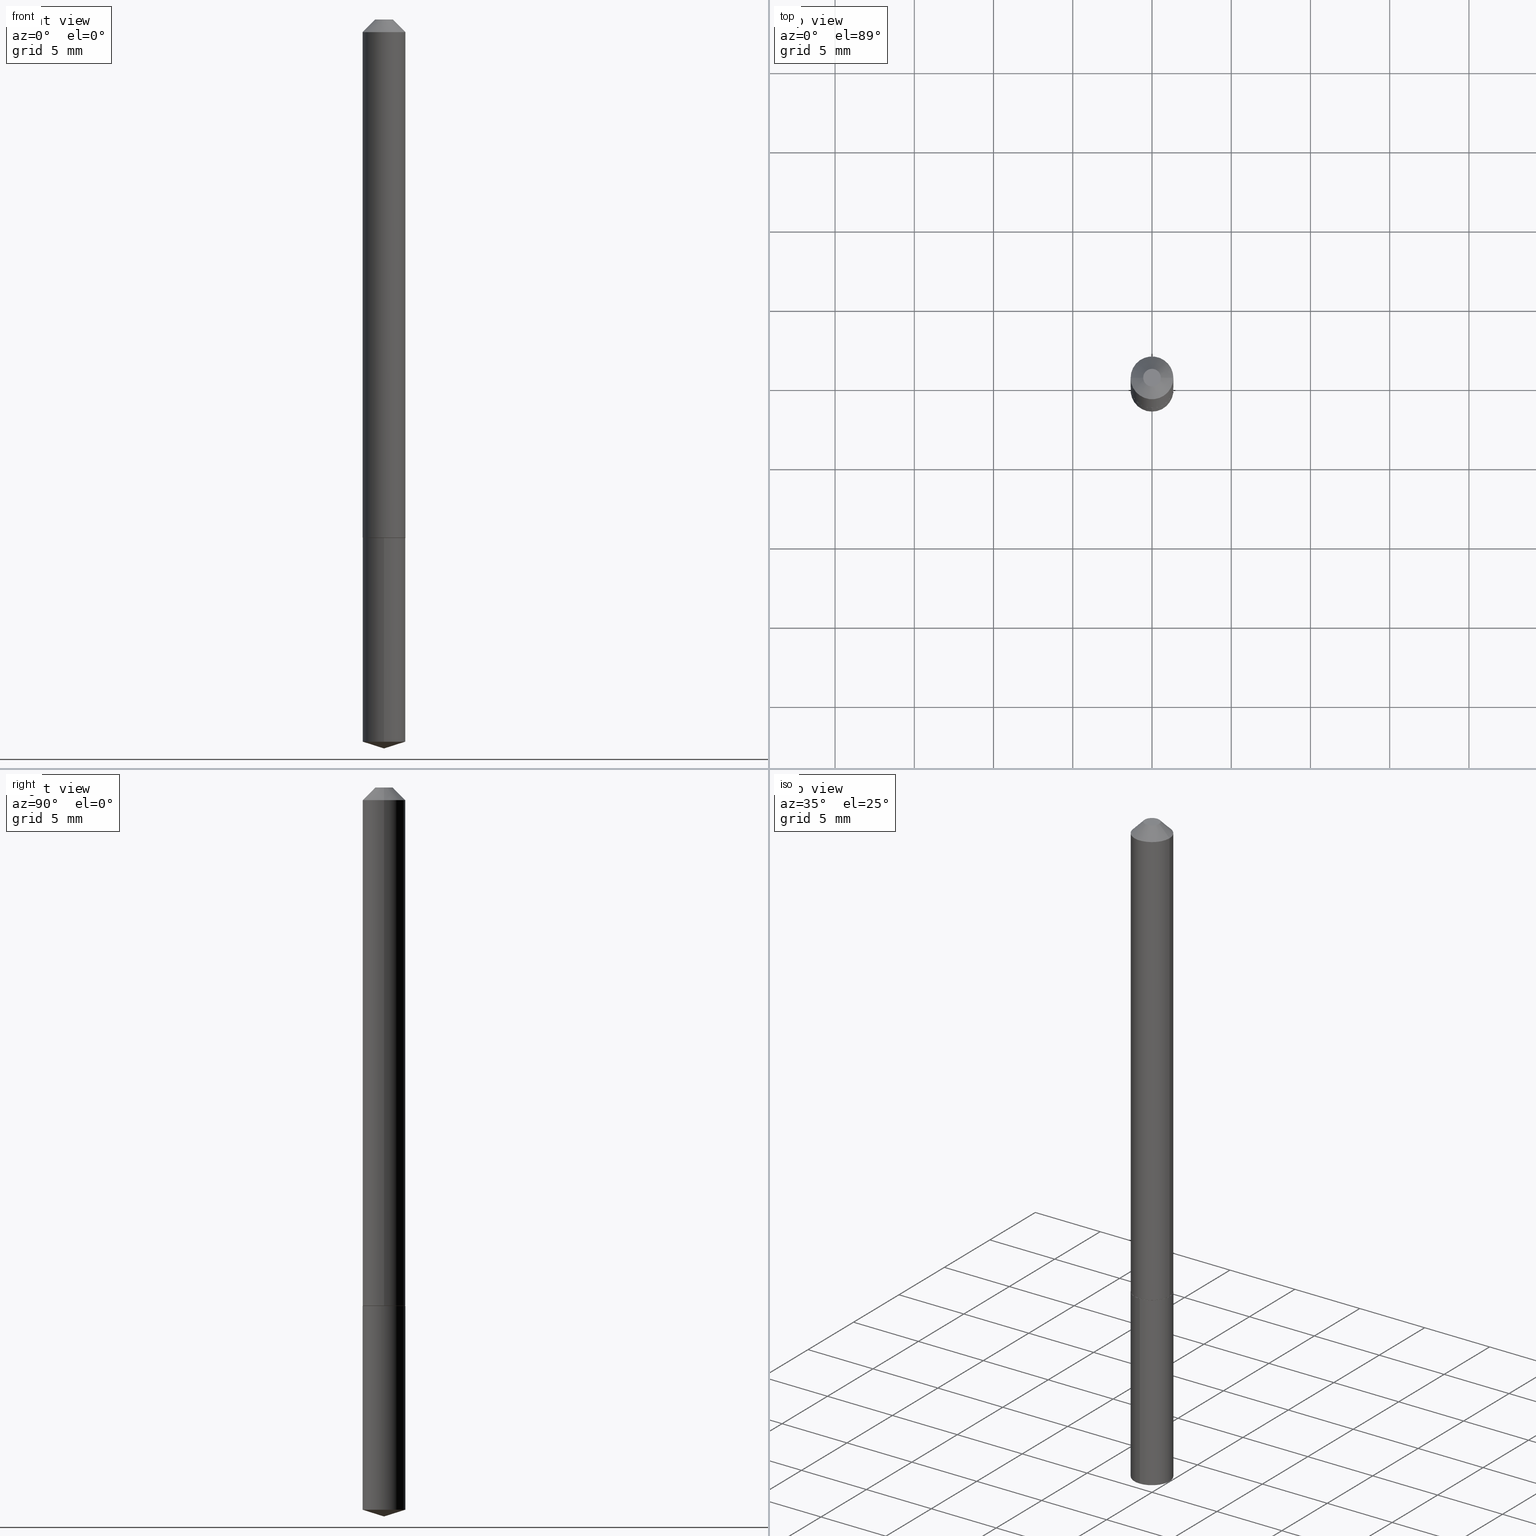
[diagram: canonical four-view strip — front | top / right | iso, engineering-drawing reading convention]
A machine part, canonical four-view strip (front | top / right | iso — engineering-drawing reading convention). The complete STEP part file that produces these views, byte-faithful:
ISO-10303-21;
HEADER;
FILE_DESCRIPTION (( 'STEP AP203' ),
    '1' );
FILE_NAME ('62065.STEP',
    '2024-04-23T05:24:26',
    ( '' ),
    ( '' ),
    'SwSTEP 2.0',
    'SolidWorks 2023',
    '' );
FILE_SCHEMA (( 'CONFIG_CONTROL_DESIGN' ));
ENDSEC;

DATA;
#1 = DIRECTION ( 'NONE',  ( -0.7071067811865452413, 2.468850131082233000E-15, -0.7071067811865497932 ) ) ;
#2 = DIRECTION ( 'NONE',  ( 1.000000000000000000, -6.982962677686274599E-15, 0.000000000000000000 ) ) ;
#3 = AXIS2_PLACEMENT_3D ( 'NONE', #364, #81, #198 ) ;
#4 = CARTESIAN_POINT ( 'NONE',  ( -0.05315000000000000280, 2.620356744801761166E-16, -0.03125000000000020123 ) ) ;
#5 = LOCAL_TIME ( 1, 24, 26.00000000000000000, #206 ) ;
#6 = DIRECTION ( 'NONE',  ( -1.000000000000000000, 6.982962677686265922E-15, -4.876176775795935793E-29 ) ) ;
#7 = DIRECTION ( 'NONE',  ( -2.445499432379948463E-29, 3.491437480389040413E-15, 1.000000000000000000 ) ) ;
#8 = EDGE_CURVE ( 'NONE', #233, #242, #215, .T. ) ;
#9 = EDGE_LOOP ( 'NONE', ( #209, #125 ) ) ;
#10 = APPROVAL_DATE_TIME ( #49, #148 ) ;
#11 = AXIS2_PLACEMENT_3D ( 'NONE', #47, #301, #138 ) ;
#12 = EDGE_CURVE ( 'NONE', #233, #139, #146, .T. ) ;
#13 = ORIENTED_EDGE ( 'NONE', *, *, #12, .T. ) ;
#14 = APPROVAL_ROLE ( '' ) ;
#15 = AXIS2_PLACEMENT_3D ( 'NONE', #340, #312, #341 ) ;
#16 = DIRECTION ( 'NONE',  ( -2.445499432379948463E-29, 3.491437480389040413E-15, 1.000000000000000000 ) ) ;
#17 = PERSON_AND_ORGANIZATION ( #208, #124 ) ;
#18 = DIRECTION ( 'NONE',  ( -2.445468806185136597E-29, 3.491481338843145583E-15, 1.000000000000000000 ) ) ;
#19 = ORIENTED_EDGE ( 'NONE', *, *, #110, .F. ) ;
#20 = DATE_AND_TIME ( #310, #5 ) ;
#21 = LINE ( 'NONE', #347, #52 ) ;
#22 = ORIENTED_EDGE ( 'NONE', *, *, #25, .T. ) ;
#23 = VECTOR ( 'NONE', #1, 39.37007874015748143 ) ;
#24 = CARTESIAN_POINT ( 'NONE',  ( 0.05315000000000016933, -4.864331801276270815E-15, -1.286899999999999933 ) ) ;
#25 = EDGE_CURVE ( 'NONE', #186, #274, #316, .T. ) ;
#26 = FACE_OUTER_BOUND ( 'NONE', #300, .T. ) ;
#27 = ORIENTED_EDGE ( 'NONE', *, *, #385, .T. ) ;
#28 = DIRECTION ( 'NONE',  ( -6.659769872151619467E-15, -0.9537169507482249342, 0.3007057995042790588 ) ) ;
#29 = PERSON_AND_ORGANIZATION_ROLE ( 'creator' ) ;
#30 = CARTESIAN_POINT ( 'NONE',  ( 7.642090019328600035E-31, -1.091087918388489897E-16, -0.03125000000000020123 ) ) ;
#31 = FACE_OUTER_BOUND ( 'NONE', #358, .T. ) ;
#32 = DIRECTION ( 'NONE',  ( -2.445468806185136597E-29, 3.491481338843145583E-15, 1.000000000000000000 ) ) ;
#33 = PERSON_AND_ORGANIZATION ( #208, #124 ) ;
#34 = LINE ( 'NONE', #133, #167 ) ;
#35 = AXIS2_PLACEMENT_3D ( 'NONE', #315, #382, #188 ) ;
#36 = EDGE_CURVE ( 'NONE', #242, #350, #21, .T. ) ;
#37 = ORIENTED_EDGE ( 'NONE', *, *, #385, .F. ) ;
#38 = CYLINDRICAL_SURFACE ( 'NONE', #100, 0.05315000000000008606 ) ;
#39 = CARTESIAN_POINT ( 'NONE',  ( -0.05315000000000016933, -4.115533870900749124E-15, -1.286899999999999933 ) ) ;
#40 = CARTESIAN_POINT ( 'NONE',  ( 7.642090019328600035E-31, -1.091087918388489897E-16, -0.03125000000000020123 ) ) ;
#41 = CC_DESIGN_DATE_AND_TIME_ASSIGNMENT ( #82, #118, ( #131 ) ) ;
#42 = EDGE_CURVE ( 'NONE', #156, #197, #34, .T. ) ;
#43 = AXIS2_PLACEMENT_3D ( 'NONE', #222, #294, #6 ) ;
#44 = VERTEX_POINT ( 'NONE', #75 ) ;
#45 = DIRECTION ( 'NONE',  ( -2.445499432379948463E-29, 3.491437480389040413E-15, 1.000000000000000000 ) ) ;
#46 = APPLICATION_CONTEXT ( 'configuration controlled 3d designs of mechanical parts and assemblies' ) ;
#47 = CARTESIAN_POINT ( 'NONE',  ( -5.839929314523175409E-48, 8.337871319499082469E-34, 2.388061258337334140E-19 ) ) ;
#48 = PERSON_AND_ORGANIZATION ( #208, #124 ) ;
#49 = DATE_AND_TIME ( #331, #163 ) ;
#50 = ORIENTED_EDGE ( 'NONE', *, *, #132, .F. ) ;
#51 = APPLICATION_PROTOCOL_DEFINITION ( 'international standard', 'config_control_design', 1994, #389 ) ;
#52 = VECTOR ( 'NONE', #313, 39.37007874015748143 ) ;
#53 = APPROVAL_PERSON_ORGANIZATION ( #17, #362, #14 ) ;
#54 = COORDINATED_UNIVERSAL_TIME_OFFSET ( 5, 0, .BEHIND. ) ;
#55 = MECHANICAL_CONTEXT ( 'NONE', #389, 'mechanical' ) ;
#56 = DIRECTION ( 'NONE',  ( 1.000000000000000000, -6.982962677686267499E-15, 0.000000000000000000 ) ) ;
#57 = DIRECTION ( 'NONE',  ( -2.445468806185136877E-29, 3.491481338843145188E-15, 1.000000000000000000 ) ) ;
#58 = PLANE ( 'NONE',  #70 ) ;
#59 = ORIENTED_EDGE ( 'NONE', *, *, #204, .T. ) ;
#60 = DIRECTION ( 'NONE',  ( -6.982962677686266711E-15, -1.000000000000000000, 3.500519750498771880E-15 ) ) ;
#61 = CC_DESIGN_PERSON_AND_ORGANIZATION_ASSIGNMENT ( #333, #137, ( #154 ) ) ;
#62 = EDGE_CURVE ( 'NONE', #242, #233, #99, .T. ) ;
#63 = ORIENTED_EDGE ( 'NONE', *, *, #42, .F. ) ;
#64 = DIRECTION ( 'NONE',  ( -2.438088387897960049E-29, 3.491481338843145188E-15, 1.000000000000000000 ) ) ;
#65 = CONICAL_SURFACE ( 'NONE', #366, 124.8659371009126602, 1.265363707695886131 ) ;
#66 = ORIENTED_EDGE ( 'NONE', *, *, #324, .F. ) ;
#67 = DIRECTION ( 'NONE',  ( 1.000000000000000000, -6.982962677686263555E-15, 0.000000000000000000 ) ) ;
#68 = EDGE_CURVE ( 'NONE', #83, #260, #373, .T. ) ;
#69 = DIRECTION ( 'NONE',  ( -2.445468806185136597E-29, 3.491481338843145583E-15, 1.000000000000000000 ) ) ;
#70 = AXIS2_PLACEMENT_3D ( 'NONE', #378, #212, #349 ) ;
#71 = LOCAL_TIME ( 1, 24, 26.00000000000000000, #375 ) ;
#72 = ORIENTED_EDGE ( 'NONE', *, *, #103, .T. ) ;
#73 = CARTESIAN_POINT ( 'NONE',  ( 3.148296541082744135E-29, -4.494933075626664883E-15, -1.287399999999999878 ) ) ;
#74 = ADVANCED_FACE ( 'NONE', ( #134 ), #112, .F. ) ;
#75 = CARTESIAN_POINT ( 'NONE',  ( -0.05315000000000000280, -1.923494599341550802E-15, -0.03125000000000020123 ) ) ;
#76 = VERTEX_POINT ( 'NONE', #245 ) ;
#77 = DIRECTION ( 'NONE',  ( -2.445468806185136597E-29, 3.491481338843145583E-15, 1.000000000000000000 ) ) ;
#78 = SHAPE_DEFINITION_REPRESENTATION ( #213, #143 ) ;
#79 = PRODUCT_RELATED_PRODUCT_CATEGORY ( 'detail', '', ( #154 ) ) ;
#80 = EDGE_LOOP ( 'NONE', ( #93, #269, #66, #237 ) ) ;
#81 = DIRECTION ( 'NONE',  ( -2.445468806185136597E-29, 3.491481338843145583E-15, 1.000000000000000000 ) ) ;
#82 = DATE_AND_TIME ( #335, #71 ) ;
#83 = VERTEX_POINT ( 'NONE', #334 ) ;
#84 = CIRCLE ( 'NONE', #374, 0.05315000000000016933 ) ;
#85 = DIRECTION ( 'NONE',  ( -2.445468806185136877E-29, 3.491481338843145188E-15, 1.000000000000000000 ) ) ;
#86 = CC_DESIGN_PERSON_AND_ORGANIZATION_ASSIGNMENT ( #273, #113, ( #131 ) ) ;
#87 = EDGE_CURVE ( 'NONE', #260, #83, #195, .T. ) ;
#88 = AXIS2_PLACEMENT_3D ( 'NONE', #318, #159, #67 ) ;
#89 = PLANE ( 'NONE',  #307 ) ;
#90 = ORIENTED_EDGE ( 'NONE', *, *, #87, .F. ) ;
#91 = CARTESIAN_POINT ( 'NONE',  ( 7.642090019328600035E-31, -1.091087918388489897E-16, -0.03125000000000020123 ) ) ;
#92 = ORIENTED_EDGE ( 'NONE', *, *, #62, .T. ) ;
#93 = ORIENTED_EDGE ( 'NONE', *, *, #211, .T. ) ;
#94 = ORIENTED_EDGE ( 'NONE', *, *, #355, .F. ) ;
#95 = AXIS2_PLACEMENT_3D ( 'NONE', #98, #7, #365 ) ;
#96 = DIRECTION ( 'NONE',  ( -6.982962677686265922E-15, -1.000000000000000000, 5.139883337091746339E-15 ) ) ;
#97 = EDGE_CURVE ( 'NONE', #186, #311, #327, .T. ) ;
#98 = CARTESIAN_POINT ( 'NONE',  ( 3.148296541082744135E-29, -4.494933075626664883E-15, -1.287399999999999878 ) ) ;
#99 = CIRCLE ( 'NONE', #259, 0.05315000000000000280 ) ;
#100 = AXIS2_PLACEMENT_3D ( 'NONE', #164, #77, #192 ) ;
#101 = ORIENTED_EDGE ( 'NONE', *, *, #330, .T. ) ;
#102 = CARTESIAN_POINT ( 'NONE',  ( 0.05315000000000000280, -4.737442604204059707E-16, -0.03125000000000020123 ) ) ;
#103 = EDGE_CURVE ( 'NONE', #197, #44, #357, .T. ) ;
#104 = ORIENTED_EDGE ( 'NONE', *, *, #68, .F. ) ;
#105 = DIRECTION ( 'NONE',  ( 6.776566513254244727E-15, 0.9537169507482271547, 0.3007057995042724530 ) ) ;
#106 = LINE ( 'NONE', #219, #123 ) ;
#107 = ORIENTED_EDGE ( 'NONE', *, *, #283, .F. ) ;
#108 =( NAMED_UNIT ( * ) SI_UNIT ( $, .STERADIAN. ) SOLID_ANGLE_UNIT ( ) );
#109 = AXIS2_PLACEMENT_3D ( 'NONE', #370, #271, #221 ) ;
#110 = EDGE_CURVE ( 'NONE', #311, #44, #126, .T. ) ;
#111 = EDGE_LOOP ( 'NONE', ( #92, #13, #384, #228 ) ) ;
#112 = PLANE ( 'NONE',  #43 ) ;
#113 = PERSON_AND_ORGANIZATION_ROLE ( 'creator' ) ;
#114 = ORIENTED_EDGE ( 'NONE', *, *, #12, .F. ) ;
#115 = APPROVAL_DATE_TIME ( #314, #250 ) ;
#116 = ADVANCED_FACE ( 'NONE', ( #149 ), #142, .T. ) ;
#117 = CALENDAR_DATE ( 2024, 23, 4 ) ;
#118 = DATE_TIME_ROLE ( 'creation_date' ) ;
#119 = DIRECTION ( 'NONE',  ( -2.445468806185136597E-29, 3.491481338843145583E-15, 1.000000000000000000 ) ) ;
#120 = ORIENTED_EDGE ( 'NONE', *, *, #97, .F. ) ;
#121 = ADVANCED_FACE ( 'NONE', ( #227 ), #302, .T. ) ;
#122 = CARTESIAN_POINT ( 'NONE',  ( 0.05265000000000032154, -4.862586060606850100E-15, -1.287400000000000100 ) ) ;
#123 = VECTOR ( 'NONE', #28, 39.37007874015748854 ) ;
#124 = ORGANIZATION ( 'UNSPECIFIED', 'UNSPECIFIED', '' ) ;
#125 = ORIENTED_EDGE ( 'NONE', *, *, #68, .T. ) ;
#126 = LINE ( 'NONE', #277, #351 ) ;
#127 = ORIENTED_EDGE ( 'NONE', *, *, #103, .F. ) ;
#128 = FACE_OUTER_BOUND ( 'NONE', #256, .T. ) ;
#129 = ADVANCED_FACE ( 'NONE', ( #210 ), #89, .F. ) ;
#130 = DIRECTION ( 'NONE',  ( -6.982962677686266711E-15, -1.000000000000000000, 3.500519750498771880E-15 ) ) ;
#131 = PRODUCT_DEFINITION ( 'UNKNOWN', '', #205, #178 ) ;
#132 = EDGE_CURVE ( 'NONE', #44, #197, #180, .T. ) ;
#133 = CARTESIAN_POINT ( 'NONE',  ( 0.05315000000000008606, -3.711444663190256610E-16, 2.591687956335544229E-30 ) ) ;
#134 = FACE_OUTER_BOUND ( 'NONE', #9, .T. ) ;
#135 = ADVANCED_FACE ( 'NONE', ( #152 ), #223, .T. ) ;
#136 = CC_DESIGN_APPROVAL ( #362, ( #205 ) ) ;
#137 = PERSON_AND_ORGANIZATION_ROLE ( 'design_owner' ) ;
#138 = DIRECTION ( 'NONE',  ( 1.000000000000000000, -6.982962677686266711E-15, 4.876139741795188952E-29 ) ) ;
#139 = VERTEX_POINT ( 'NONE', #281 ) ;
#140 = DIRECTION ( 'NONE',  ( -6.982962677686265922E-15, -1.000000000000000000, 5.139883337091746339E-15 ) ) ;
#141 = ADVANCED_FACE ( 'NONE', ( #31 ), #65, .T. ) ;
#142 = CYLINDRICAL_SURFACE ( 'NONE', #200, 0.05315000000000008606 ) ;
#143 = ADVANCED_BREP_SHAPE_REPRESENTATION ( '62065', ( #268, #162, #109 ), #181 ) ;
#144 = VECTOR ( 'NONE', #377, 39.37007874015748143 ) ;
#145 = DIRECTION ( 'NONE',  ( -6.982962677686265922E-15, -1.000000000000000000, 5.139883337091746339E-15 ) ) ;
#146 = LINE ( 'NONE', #252, #144 ) ;
#147 = DATE_TIME_ROLE ( 'classification_date' ) ;
#148 = APPROVAL ( #379, 'UNSPECIFIED' ) ;
#149 = FACE_OUTER_BOUND ( 'NONE', #278, .T. ) ;
#150 = CLOSED_SHELL ( 'NONE', ( #371, #141, #345, #323, #189 ) ) ;
#151 = APPROVAL_PERSON_ORGANIZATION ( #253, #148, #276 ) ;
#152 = FACE_OUTER_BOUND ( 'NONE', #80, .T. ) ;
#153 = ORIENTED_EDGE ( 'NONE', *, *, #25, .F. ) ;
#154 = PRODUCT ( '62065', '62065', '', ( #55 ) ) ;
#155 = CARTESIAN_POINT ( 'NONE',  ( 7.642090019328600035E-31, -1.091087918388489897E-16, -0.03125000000000020123 ) ) ;
#156 = VERTEX_POINT ( 'NONE', #24 ) ;
#157 = CARTESIAN_POINT ( 'NONE',  ( -9.185074516793209939E-28, 1.311351187788951990E-13, 37.55907874015748149 ) ) ;
#158 = ADVANCED_FACE ( 'NONE', ( #386 ), #342, .T. ) ;
#159 = DIRECTION ( 'NONE',  ( -2.445468806185136597E-29, 3.491481338843145583E-15, 1.000000000000000000 ) ) ;
#160 = DIRECTION ( 'NONE',  ( 0.7071067811865452413, -7.319954787623248157E-15, -0.7071067811865497932 ) ) ;
#161 = SECURITY_CLASSIFICATION_LEVEL ( 'unclassified' ) ;
#162 = MANIFOLD_SOLID_BREP ( 'Body-Move/Copy2[2]', #338 ) ;
#163 = LOCAL_TIME ( 1, 24, 26.00000000000000000, #196 ) ;
#164 = CARTESIAN_POINT ( 'NONE',  ( 0.000000000000000000, 0.000000000000000000, 0.000000000000000000 ) ) ;
#165 = CARTESIAN_POINT ( 'NONE',  ( 0.05315000000000016933, -4.864331801276270815E-15, -1.286899999999999933 ) ) ;
#166 = CARTESIAN_POINT ( 'NONE',  ( -9.185074516793209939E-28, 1.311351187788951990E-13, 37.55907874015748149 ) ) ;
#167 = VECTOR ( 'NONE', #85, 39.37007874015748143 ) ;
#168 = CC_DESIGN_PERSON_AND_ORGANIZATION_ASSIGNMENT ( #234, #285, ( #205 ) ) ;
#169 = EDGE_LOOP ( 'NONE', ( #19, #101, #264, #50 ) ) ;
#170 = DIRECTION ( 'NONE',  ( 1.000000000000000000, -6.982962677686274599E-15, 0.000000000000000000 ) ) ;
#171 = ORIENTED_EDGE ( 'NONE', *, *, #355, .T. ) ;
#172 = EDGE_CURVE ( 'NONE', #76, #242, #106, .T. ) ;
#173 = AXIS2_PLACEMENT_3D ( 'NONE', #155, #251, #353 ) ;
#174 = LOCAL_TIME ( 1, 24, 26.00000000000000000, #289 ) ;
#175 = ORIENTED_EDGE ( 'NONE', *, *, #8, .T. ) ;
#176 = CARTESIAN_POINT ( 'NONE',  ( -0.05315000000000016933, -4.115533870900749124E-15, -1.286899999999999933 ) ) ;
#177 = ADVANCED_FACE ( 'NONE', ( #26 ), #321, .T. ) ;
#178 = DESIGN_CONTEXT ( 'detailed design', #46, 'design' ) ;
#179 = CALENDAR_DATE ( 2024, 23, 4 ) ;
#180 = CIRCLE ( 'NONE', #239, 0.05315000000000000280 ) ;
#181 =( GEOMETRIC_REPRESENTATION_CONTEXT ( 3 ) GLOBAL_UNCERTAINTY_ASSIGNED_CONTEXT ( ( #305 ) ) GLOBAL_UNIT_ASSIGNED_CONTEXT ( ( #356, #270, #108 ) ) REPRESENTATION_CONTEXT ( 'NONE', 'WORKASPACE' ) );
#182 = ORIENTED_EDGE ( 'NONE', *, *, #36, .T. ) ;
#183 = CARTESIAN_POINT ( 'NONE',  ( -0.02190000000000000280, 2.074812785607526756E-16, 2.388061258324734225E-19 ) ) ;
#184 = DIRECTION ( 'NONE',  ( -2.445499432379948463E-29, 3.491437480389040413E-15, 1.000000000000000000 ) ) ;
#185 = DIRECTION ( 'NONE',  ( -2.445468806185136597E-29, 3.491481338843145583E-15, 1.000000000000000000 ) ) ;
#186 = VERTEX_POINT ( 'NONE', #390 ) ;
#187 = AXIS2_PLACEMENT_3D ( 'NONE', #282, #184, #96 ) ;
#188 = DIRECTION ( 'NONE',  ( -6.982962677686265922E-15, -1.000000000000000000, 5.139883337091746339E-15 ) ) ;
#189 = ADVANCED_FACE ( 'NONE', ( #128 ), #58, .F. ) ;
#190 = CARTESIAN_POINT ( 'NONE',  ( 3.148296541082744135E-29, -4.494933075626664883E-15, -1.287399999999999878 ) ) ;
#191 = CIRCLE ( 'NONE', #303, 0.05315000000000016933 ) ;
#192 = DIRECTION ( 'NONE',  ( 1.000000000000000000, -6.982962677686266711E-15, 4.876176775795936353E-29 ) ) ;
#193 = DIRECTION ( 'NONE',  ( -1.000000000000000000, 6.982962677686267499E-15, 0.000000000000000000 ) ) ;
#194 = ORIENTED_EDGE ( 'NONE', *, *, #8, .F. ) ;
#195 = CIRCLE ( 'NONE', #3, 0.02190000000000000280 ) ;
#196 = COORDINATED_UNIVERSAL_TIME_OFFSET ( 5, 0, .BEHIND. ) ;
#197 = VERTEX_POINT ( 'NONE', #309 ) ;
#198 = DIRECTION ( 'NONE',  ( 1.000000000000000000, -6.982962677686266711E-15, 4.876139741795188952E-29 ) ) ;
#199 = APPROVAL_STATUS ( 'not_yet_approved' ) ;
#200 = AXIS2_PLACEMENT_3D ( 'NONE', #230, #18, #380 ) ;
#201 = AXIS2_PLACEMENT_3D ( 'NONE', #166, #45, #130 ) ;
#202 = ORIENTED_EDGE ( 'NONE', *, *, #324, .T. ) ;
#203 = DIRECTION ( 'NONE',  ( 1.000000000000000000, -6.982962677686265922E-15, 4.876176775795935793E-29 ) ) ;
#204 = EDGE_CURVE ( 'NONE', #139, #350, #381, .T. ) ;
#205 = PRODUCT_DEFINITION_FORMATION_WITH_SPECIFIED_SOURCE ( 'ANY', '', #154, .NOT_KNOWN. ) ;
#206 = COORDINATED_UNIVERSAL_TIME_OFFSET ( 5, 0, .BEHIND. ) ;
#207 = ORIENTED_EDGE ( 'NONE', *, *, #292, .T. ) ;
#208 = PERSON ( 'UNSPECIFIED', 'UNSPECIFIED', 'UNSPECIFIED', ('UNSPECIFIED'), ('UNSPECIFIED'), ('UNSPECIFIED') ) ;
#209 = ORIENTED_EDGE ( 'NONE', *, *, #87, .T. ) ;
#210 = FACE_OUTER_BOUND ( 'NONE', #254, .T. ) ;
#211 = EDGE_CURVE ( 'NONE', #274, #186, #246, .T. ) ;
#212 = DIRECTION ( 'NONE',  ( 2.445499432379947903E-29, -3.491437480389040413E-15, -1.000000000000000000 ) ) ;
#213 = PRODUCT_DEFINITION_SHAPE ( 'NONE', 'NONE',  #131 ) ;
#214 = CC_DESIGN_PERSON_AND_ORGANIZATION_ASSIGNMENT ( #258, #232, ( #339 ) ) ;
#215 = CIRCLE ( 'NONE', #35, 0.05315000000000000280 ) ;
#216 = ORIENTED_EDGE ( 'NONE', *, *, #330, .F. ) ;
#217 = CYLINDRICAL_SURFACE ( 'NONE', #95, 0.05315000000000000280 ) ;
#218 = DIRECTION ( 'NONE',  ( 0.7071067811863180896, -2.468850131079853401E-15, 0.7071067811867769448 ) ) ;
#219 = CARTESIAN_POINT ( 'NONE',  ( 4.428720615713685190E-29, -6.323106203732181609E-15, -1.810999999999999943 ) ) ;
#220 = ORIENTED_EDGE ( 'NONE', *, *, #62, .F. ) ;
#221 = DIRECTION ( 'NONE',  ( 1.000000000000000000, 0.000000000000000000, 0.000000000000000000 ) ) ;
#222 = CARTESIAN_POINT ( 'NONE',  ( -2.919964657261587705E-48, 4.168935659749541235E-34, 1.194030629168667070E-19 ) ) ;
#223 = CONICAL_SURFACE ( 'NONE', #367, 0.05315000000000016933, 0.7853981633971238718 ) ;
#224 = CC_DESIGN_SECURITY_CLASSIFICATION ( #339, ( #205 ) ) ;
#225 = EDGE_CURVE ( 'NONE', #350, #139, #344, .T. ) ;
#226 = CARTESIAN_POINT ( 'NONE',  ( -3.711444663189813369E-16, -0.05315000000000629637, -1.794241869371081544 ) ) ;
#227 = FACE_OUTER_BOUND ( 'NONE', #241, .T. ) ;
#228 = ORIENTED_EDGE ( 'NONE', *, *, #36, .F. ) ;
#229 = AXIS2_PLACEMENT_3D ( 'NONE', #30, #262, #193 ) ;
#230 = CARTESIAN_POINT ( 'NONE',  ( 0.000000000000000000, 0.000000000000000000, 0.000000000000000000 ) ) ;
#231 = EDGE_LOOP ( 'NONE', ( #107, #369, #194 ) ) ;
#232 = PERSON_AND_ORGANIZATION_ROLE ( 'classification_officer' ) ;
#233 = VERTEX_POINT ( 'NONE', #275 ) ;
#234 = PERSON_AND_ORGANIZATION ( #208, #124 ) ;
#235 = APPROVAL_PERSON_ORGANIZATION ( #48, #250, #247 ) ;
#236 = LENGTH_MEASURE_WITH_UNIT ( LENGTH_MEASURE( 0.02539999999999999897 ), #287 );
#237 = ORIENTED_EDGE ( 'NONE', *, *, #292, .F. ) ;
#238 = CARTESIAN_POINT ( 'NONE',  ( 3.147073806679652455E-29, -4.493187334957244168E-15, -1.286899999999999933 ) ) ;
#239 = AXIS2_PLACEMENT_3D ( 'NONE', #91, #185, #56 ) ;
#240 = CC_DESIGN_APPROVAL ( #148, ( #339 ) ) ;
#241 = EDGE_LOOP ( 'NONE', ( #120, #22, #207, #216 ) ) ;
#242 = VERTEX_POINT ( 'NONE', #226 ) ;
#243 = FACE_OUTER_BOUND ( 'NONE', #169, .T. ) ;
#244 = DIRECTION ( 'NONE',  ( -2.445499432379948463E-29, 3.491437480389040413E-15, 1.000000000000000000 ) ) ;
#245 = CARTESIAN_POINT ( 'NONE',  ( 4.428799472040086264E-29, -6.322993276984551602E-15, -1.810999999999999943 ) ) ;
#246 = CIRCLE ( 'NONE', #88, 0.05265000000000032154 ) ;
#247 = APPROVAL_ROLE ( '' ) ;
#248 = DATE_AND_TIME ( #179, #308 ) ;
#249 = VECTOR ( 'NONE', #218, 39.37007874015748143 ) ;
#250 = APPROVAL ( #265, 'UNSPECIFIED' ) ;
#251 = DIRECTION ( 'NONE',  ( 2.445468806185136597E-29, -3.491481338843145583E-15, -1.000000000000000000 ) ) ;
#252 = CARTESIAN_POINT ( 'NONE',  ( 3.776534640565246752E-16, 0.05314999999999550639, -1.287400000000000100 ) ) ;
#253 = PERSON_AND_ORGANIZATION ( #208, #124 ) ;
#254 = EDGE_LOOP ( 'NONE', ( #361, #153 ) ) ;
#255 = CARTESIAN_POINT ( 'NONE',  ( 3.148296541082745256E-29, -4.494933075626666460E-15, -1.287400000000000100 ) ) ;
#256 = EDGE_LOOP ( 'NONE', ( #328, #59 ) ) ;
#257 = FACE_OUTER_BOUND ( 'NONE', #111, .T. ) ;
#258 = PERSON_AND_ORGANIZATION ( #208, #124 ) ;
#259 = AXIS2_PLACEMENT_3D ( 'NONE', #297, #244, #140 ) ;
#260 = VERTEX_POINT ( 'NONE', #183 ) ;
#261 = LINE ( 'NONE', #165, #249 ) ;
#262 = DIRECTION ( 'NONE',  ( 2.445468806185136597E-29, -3.491481338843145583E-15, -1.000000000000000000 ) ) ;
#263 = LINE ( 'NONE', #4, #23 ) ;
#264 = ORIENTED_EDGE ( 'NONE', *, *, #42, .T. ) ;
#265 = APPROVAL_STATUS ( 'not_yet_approved' ) ;
#266 = CC_DESIGN_DATE_AND_TIME_ASSIGNMENT ( #20, #147, ( #339 ) ) ;
#267 = VECTOR ( 'NONE', #105, 39.37007874015748854 ) ;
#268 = MANIFOLD_SOLID_BREP ( 'Body-Move/Copy2[1]', #150 ) ;
#269 = ORIENTED_EDGE ( 'NONE', *, *, #97, .T. ) ;
#270 =( NAMED_UNIT ( * ) PLANE_ANGLE_UNIT ( ) SI_UNIT ( $, .RADIAN. ) );
#271 = DIRECTION ( 'NONE',  ( 0.000000000000000000, 0.000000000000000000, 1.000000000000000000 ) ) ;
#272 = AXIS2_PLACEMENT_3D ( 'NONE', #255, #280, #343 ) ;
#273 = PERSON_AND_ORGANIZATION ( #208, #124 ) ;
#274 = VERTEX_POINT ( 'NONE', #122 ) ;
#275 = CARTESIAN_POINT ( 'NONE',  ( 3.776534640565372970E-16, 0.05314999999999375085, -1.794241869371081988 ) ) ;
#276 = APPROVAL_ROLE ( '' ) ;
#277 = CARTESIAN_POINT ( 'NONE',  ( -0.05315000000000008606, 3.776534640564938603E-16, -2.614414000470486733E-30 ) ) ;
#278 = EDGE_LOOP ( 'NONE', ( #202, #348, #127, #63 ) ) ;
#279 = CC_DESIGN_PERSON_AND_ORGANIZATION_ASSIGNMENT ( #33, #29, ( #205 ) ) ;
#280 = DIRECTION ( 'NONE',  ( -2.445468806185136597E-29, 3.491481338843145583E-15, 1.000000000000000000 ) ) ;
#281 = CARTESIAN_POINT ( 'NONE',  ( 3.776534640565371984E-16, 0.05314999999999551333, -1.287400000000000100 ) ) ;
#282 = CARTESIAN_POINT ( 'NONE',  ( 3.148296541082744135E-29, -4.494933075626664883E-15, -1.287399999999999878 ) ) ;
#283 = EDGE_CURVE ( 'NONE', #76, #233, #322, .T. ) ;
#284 = LINE ( 'NONE', #102, #317 ) ;
#285 = PERSON_AND_ORGANIZATION_ROLE ( 'design_supplier' ) ;
#286 = VECTOR ( 'NONE', #337, 39.37007874015748143 ) ;
#287 =( LENGTH_UNIT ( ) NAMED_UNIT ( * ) SI_UNIT ( $, .METRE. ) );
#288 = AXIS2_PLACEMENT_3D ( 'NONE', #190, #16, #145 ) ;
#289 = COORDINATED_UNIVERSAL_TIME_OFFSET ( 5, 0, .BEHIND. ) ;
#290 = FACE_OUTER_BOUND ( 'NONE', #332, .T. ) ;
#291 = ADVANCED_FACE ( 'NONE', ( #243 ), #38, .T. ) ;
#292 = EDGE_CURVE ( 'NONE', #274, #156, #261, .T. ) ;
#293 = CARTESIAN_POINT ( 'NONE',  ( 4.428800163516986485E-29, -6.322993276984551602E-15, -1.810999999999999943 ) ) ;
#294 = DIRECTION ( 'NONE',  ( 2.438088387897960049E-29, -3.491481338843145188E-15, -1.000000000000000000 ) ) ;
#295 = ORIENTED_EDGE ( 'NONE', *, *, #283, .T. ) ;
#296 = FACE_OUTER_BOUND ( 'NONE', #231, .T. ) ;
#297 = CARTESIAN_POINT ( 'NONE',  ( 4.387778044936117180E-29, -6.264539774979306472E-15, -1.794241869371081766 ) ) ;
#298 = APPLICATION_PROTOCOL_DEFINITION ( 'international standard', 'config_control_design', 1994, #46 ) ;
#299 = DIRECTION ( 'NONE',  ( -2.445468806185136597E-29, 3.491481338843145583E-15, 1.000000000000000000 ) ) ;
#300 = EDGE_LOOP ( 'NONE', ( #94, #90, #27, #368 ) ) ;
#301 = DIRECTION ( 'NONE',  ( -2.445468806185136597E-29, 3.491481338843145583E-15, 1.000000000000000000 ) ) ;
#302 = CONICAL_SURFACE ( 'NONE', #15, 0.05315000000000016933, 0.7853981633971238718 ) ;
#303 = AXIS2_PLACEMENT_3D ( 'NONE', #238, #69, #170 ) ;
#304 = DIMENSIONAL_EXPONENTS ( 1.000000000000000000, 0.000000000000000000, 0.000000000000000000, 0.000000000000000000, 0.000000000000000000, 0.000000000000000000, 0.000000000000000000 ) ;
#305 = UNCERTAINTY_MEASURE_WITH_UNIT (LENGTH_MEASURE( 1.000000000000000082E-05 ), #356, 'distance_accuracy_value', 'NONE');
#306 = ORIENTED_EDGE ( 'NONE', *, *, #172, .F. ) ;
#307 = AXIS2_PLACEMENT_3D ( 'NONE', #346, #64, #203 ) ;
#308 = LOCAL_TIME ( 1, 24, 26.00000000000000000, #54 ) ;
#309 = CARTESIAN_POINT ( 'NONE',  ( 0.05315000000000000280, -4.802532581578741700E-16, -0.03125000000000020123 ) ) ;
#310 = CALENDAR_DATE ( 2024, 23, 4 ) ;
#311 = VERTEX_POINT ( 'NONE', #39 ) ;
#312 = DIRECTION ( 'NONE',  ( -2.445468806185136597E-29, 3.491481338843145583E-15, 1.000000000000000000 ) ) ;
#313 = DIRECTION ( 'NONE',  ( -2.445499432379948463E-29, 3.491437480389040413E-15, 1.000000000000000000 ) ) ;
#314 = DATE_AND_TIME ( #117, #174 ) ;
#315 = CARTESIAN_POINT ( 'NONE',  ( 4.387778044936117180E-29, -6.264539774979306472E-15, -1.794241869371081766 ) ) ;
#316 = CIRCLE ( 'NONE', #272, 0.05265000000000032154 ) ;
#317 = VECTOR ( 'NONE', #160, 39.37007874015748143 ) ;
#318 = CARTESIAN_POINT ( 'NONE',  ( 3.148296541082745256E-29, -4.494933075626666460E-15, -1.287400000000000100 ) ) ;
#319 = DIRECTION ( 'NONE',  ( 1.000000000000000000, -6.982962677686267499E-15, 0.000000000000000000 ) ) ;
#320 = DIRECTION ( 'NONE',  ( -2.445499432379948463E-29, 3.491437480389040413E-15, 1.000000000000000000 ) ) ;
#321 = CONICAL_SURFACE ( 'NONE', #173, 0.05315000000000000280, 0.7853981633974450594 ) ;
#322 = LINE ( 'NONE', #293, #267 ) ;
#323 = ADVANCED_FACE ( 'NONE', ( #290 ), #354, .T. ) ;
#324 = EDGE_CURVE ( 'NONE', #156, #311, #84, .T. ) ;
#325 = CARTESIAN_POINT ( 'NONE',  ( 3.147073806679652455E-29, -4.493187334957244168E-15, -1.286899999999999933 ) ) ;
#326 = DIRECTION ( 'NONE',  ( -6.982962677686265922E-15, -1.000000000000000000, 5.139883337091746339E-15 ) ) ;
#327 = LINE ( 'NONE', #176, #286 ) ;
#328 = ORIENTED_EDGE ( 'NONE', *, *, #225, .T. ) ;
#329 = AXIS2_PLACEMENT_3D ( 'NONE', #40, #299, #319 ) ;
#330 = EDGE_CURVE ( 'NONE', #311, #156, #191, .T. ) ;
#331 = CALENDAR_DATE ( 2024, 23, 4 ) ;
#332 = EDGE_LOOP ( 'NONE', ( #114, #175, #182, #388 ) ) ;
#333 = PERSON_AND_ORGANIZATION ( #208, #124 ) ;
#334 = CARTESIAN_POINT ( 'NONE',  ( 0.02190000000000000280, -3.119945832858012397E-16, 2.388061258353582730E-19 ) ) ;
#335 = CALENDAR_DATE ( 2024, 23, 4 ) ;
#336 = EDGE_LOOP ( 'NONE', ( #104, #171, #72, #37 ) ) ;
#337 = DIRECTION ( 'NONE',  ( -0.7071067811863180896, 7.493145998869524278E-15, 0.7071067811867769448 ) ) ;
#338 = CLOSED_SHELL ( 'NONE', ( #158, #116, #135, #129, #121, #291, #177, #74 ) ) ;
#339 = SECURITY_CLASSIFICATION ( '', '', #161 ) ;
#340 = CARTESIAN_POINT ( 'NONE',  ( 3.147073806679652455E-29, -4.493187334957244168E-15, -1.286899999999999933 ) ) ;
#341 = DIRECTION ( 'NONE',  ( 1.000000000000000000, -6.982962677686274599E-15, 0.000000000000000000 ) ) ;
#342 = CONICAL_SURFACE ( 'NONE', #229, 0.05315000000000000280, 0.7853981633974450594 ) ;
#343 = DIRECTION ( 'NONE',  ( 1.000000000000000000, -6.982962677686263555E-15, 0.000000000000000000 ) ) ;
#344 = CIRCLE ( 'NONE', #288, 0.05315000000000000280 ) ;
#345 = ADVANCED_FACE ( 'NONE', ( #296 ), #360, .T. ) ;
#346 = CARTESIAN_POINT ( 'NONE',  ( 3.148296541082745256E-29, -4.494933075626666460E-15, -1.287400000000000100 ) ) ;
#347 = CARTESIAN_POINT ( 'NONE',  ( -3.711444663189935642E-16, -0.05315000000000449920, -1.287399999999999434 ) ) ;
#348 = ORIENTED_EDGE ( 'NONE', *, *, #110, .T. ) ;
#349 = DIRECTION ( 'NONE',  ( 6.982962677686265922E-15, 1.000000000000000000, -3.491437480389040413E-15 ) ) ;
#350 = VERTEX_POINT ( 'NONE', #359 ) ;
#351 = VECTOR ( 'NONE', #57, 39.37007874015748143 ) ;
#352 = AXIS2_PLACEMENT_3D ( 'NONE', #73, #363, #326 ) ;
#353 = DIRECTION ( 'NONE',  ( -1.000000000000000000, 6.982962677686267499E-15, 0.000000000000000000 ) ) ;
#354 = CYLINDRICAL_SURFACE ( 'NONE', #352, 0.05315000000000000280 ) ;
#355 = EDGE_CURVE ( 'NONE', #83, #197, #284, .T. ) ;
#356 =( CONVERSION_BASED_UNIT ( 'INCH', #236 ) LENGTH_UNIT ( ) NAMED_UNIT ( #304 ) );
#357 = CIRCLE ( 'NONE', #329, 0.05315000000000000280 ) ;
#358 = EDGE_LOOP ( 'NONE', ( #306, #295, #220 ) ) ;
#359 = CARTESIAN_POINT ( 'NONE',  ( -3.711444663189935642E-16, -0.05315000000000449920, -1.287399999999999434 ) ) ;
#360 = CONICAL_SURFACE ( 'NONE', #201, 124.8659371009126602, 1.265363707695886131 ) ;
#361 = ORIENTED_EDGE ( 'NONE', *, *, #211, .F. ) ;
#362 = APPROVAL ( #199, 'UNSPECIFIED' ) ;
#363 = DIRECTION ( 'NONE',  ( -2.445499432379948463E-29, 3.491437480389040413E-15, 1.000000000000000000 ) ) ;
#364 = CARTESIAN_POINT ( 'NONE',  ( -5.839929314523175409E-48, 8.337871319499082469E-34, 2.388061258337334140E-19 ) ) ;
#365 = DIRECTION ( 'NONE',  ( -6.982962677686265922E-15, -1.000000000000000000, 5.139883337091746339E-15 ) ) ;
#366 = AXIS2_PLACEMENT_3D ( 'NONE', #157, #320, #60 ) ;
#367 = AXIS2_PLACEMENT_3D ( 'NONE', #376, #119, #387 ) ;
#368 = ORIENTED_EDGE ( 'NONE', *, *, #132, .T. ) ;
#369 = ORIENTED_EDGE ( 'NONE', *, *, #172, .T. ) ;
#370 = CARTESIAN_POINT ( 'NONE',  ( 0.000000000000000000, 0.000000000000000000, 0.000000000000000000 ) ) ;
#371 = ADVANCED_FACE ( 'NONE', ( #257 ), #217, .T. ) ;
#372 = APPROVAL_DATE_TIME ( #248, #362 ) ;
#373 = CIRCLE ( 'NONE', #11, 0.02190000000000000280 ) ;
#374 = AXIS2_PLACEMENT_3D ( 'NONE', #325, #32, #2 ) ;
#375 = COORDINATED_UNIVERSAL_TIME_OFFSET ( 5, 0, .BEHIND. ) ;
#376 = CARTESIAN_POINT ( 'NONE',  ( 3.147073806679652455E-29, -4.493187334957244168E-15, -1.286899999999999933 ) ) ;
#377 = DIRECTION ( 'NONE',  ( -2.445499432379948463E-29, 3.491437480389040413E-15, 1.000000000000000000 ) ) ;
#378 = CARTESIAN_POINT ( 'NONE',  ( 3.148296541082744135E-29, -4.494933075626664883E-15, -1.287399999999999878 ) ) ;
#379 = APPROVAL_STATUS ( 'not_yet_approved' ) ;
#380 = DIRECTION ( 'NONE',  ( 1.000000000000000000, -6.982962677686266711E-15, 4.876176775795936353E-29 ) ) ;
#381 = CIRCLE ( 'NONE', #187, 0.05315000000000000280 ) ;
#382 = DIRECTION ( 'NONE',  ( -2.445499432379948463E-29, 3.491437480389040413E-15, 1.000000000000000000 ) ) ;
#383 = CC_DESIGN_APPROVAL ( #250, ( #131 ) ) ;
#384 = ORIENTED_EDGE ( 'NONE', *, *, #225, .F. ) ;
#385 = EDGE_CURVE ( 'NONE', #260, #44, #263, .T. ) ;
#386 = FACE_OUTER_BOUND ( 'NONE', #336, .T. ) ;
#387 = DIRECTION ( 'NONE',  ( 1.000000000000000000, -6.982962677686274599E-15, 0.000000000000000000 ) ) ;
#388 = ORIENTED_EDGE ( 'NONE', *, *, #204, .F. ) ;
#389 = APPLICATION_CONTEXT ( 'configuration controlled 3d designs of mechanical parts and assemblies' ) ;
#390 = CARTESIAN_POINT ( 'NONE',  ( -0.05265000000000032154, -4.118183098074860325E-15, -1.287400000000000100 ) ) ;
ENDSEC;
END-ISO-10303-21;
